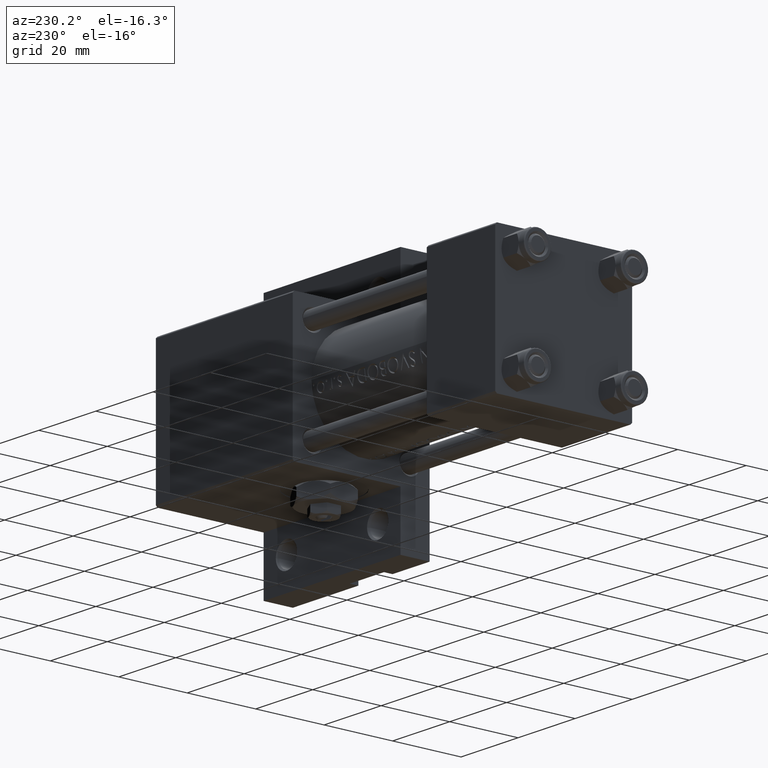
[diagram: clean part render]
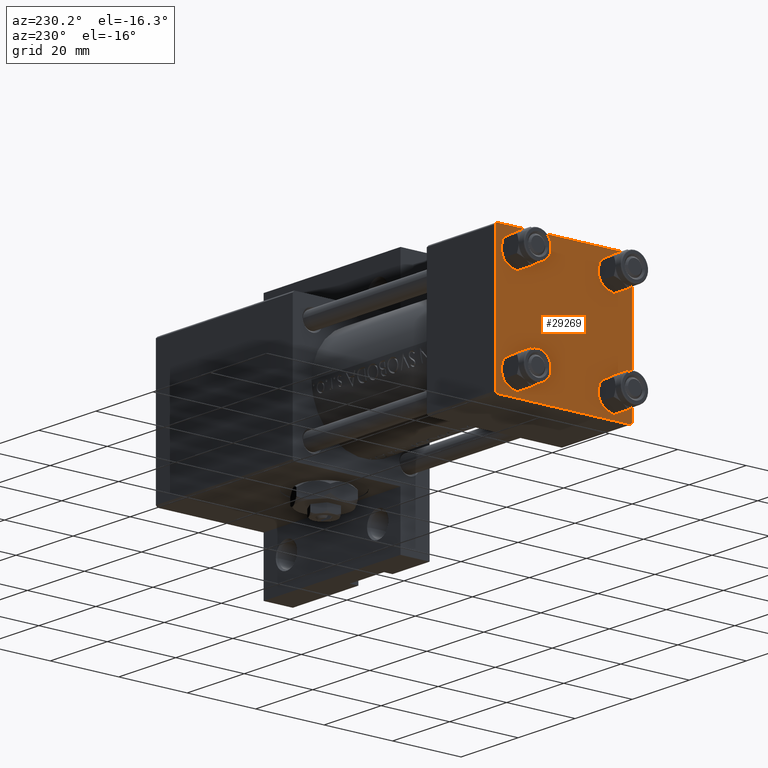
[diagram: same view with one face highlighted and labeled with its STEP entity id]
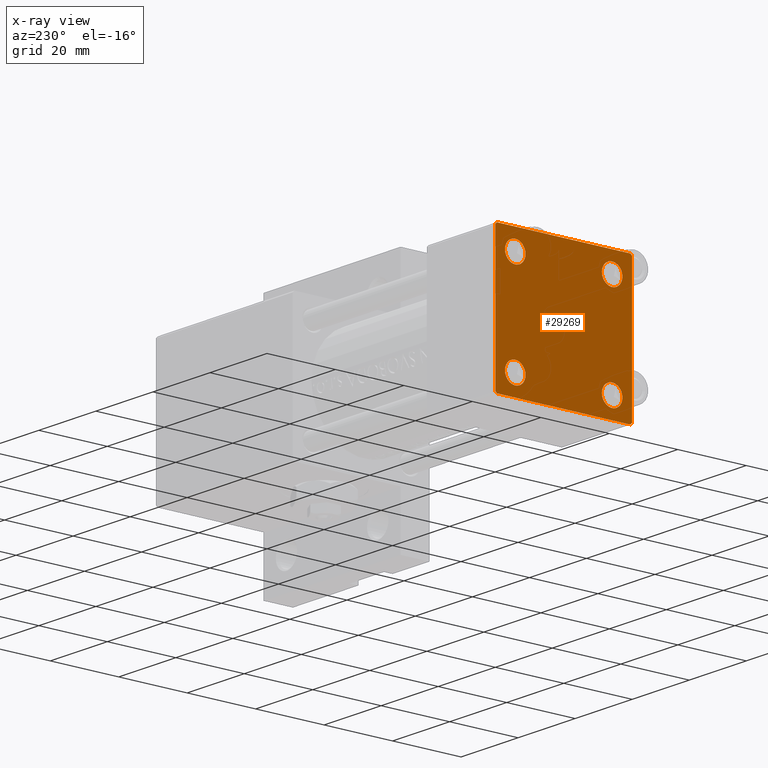
[diagram: x-ray of the same camera — body ghosted, the highlighted face saturated]
A machine part, auxiliary view. The second image highlights one B-rep face of the part: STEP entity #29269.
The next image is the same camera in x-ray: the body ghosted, the highlighted face saturated — about 0% of this face is hidden behind the body in this view.
In plain terms, the highlighted planar face has unit normal (-1, 0, -0).
Its self-contained STEP definition (entity closure, byte-faithful):
#764 = ORIENTED_EDGE ( 'NONE', *, *, #17695, .F. ) ;
#981 = VERTEX_POINT ( 'NONE', #31180 ) ;
#1001 = EDGE_LOOP ( 'NONE', ( #1838, #30888 ) ) ;
#1186 = CARTESIAN_POINT ( 'NONE',  ( 0.000000000000000000, -14.14999999999999503, -11.15000000000000036 ) ) ;
#1632 = ORIENTED_EDGE ( 'NONE', *, *, #39828, .T. ) ;
#1649 = AXIS2_PLACEMENT_3D ( 'NONE', #31211, #27218, #12268 ) ;
#1721 = VERTEX_POINT ( 'NONE', #31303 ) ;
#1838 = ORIENTED_EDGE ( 'NONE', *, *, #20908, .T. ) ;
#1909 = CARTESIAN_POINT ( 'NONE',  ( 0.000000000000000000, 20.00000000000000000, 20.00000000000000000 ) ) ;
#2832 = VECTOR ( 'NONE', #10138, 1000.000000000000000 ) ;
#3689 = CIRCLE ( 'NONE', #18815, 3.000000000000004441 ) ;
#3874 = VECTOR ( 'NONE', #24067, 1000.000000000000000 ) ;
#4197 = CARTESIAN_POINT ( 'NONE',  ( 0.000000000000000000, 20.00000000000000000, -20.00000000000000711 ) ) ;
#4822 = CARTESIAN_POINT ( 'NONE',  ( 0.000000000000000000, -14.14999999999999503, 17.14999999999998792 ) ) ;
#5444 = VERTEX_POINT ( 'NONE', #32926 ) ;
#5856 = DIRECTION ( 'NONE',  ( 0.000000000000000000, 0.000000000000000000, 1.000000000000000000 ) ) ;
#5898 = EDGE_CURVE ( 'NONE', #22561, #5444, #42839, .T. ) ;
#6454 = CIRCLE ( 'NONE', #41495, 2.999999999999983569 ) ;
#6455 = ORIENTED_EDGE ( 'NONE', *, *, #12789, .T. ) ;
#7560 = ORIENTED_EDGE ( 'NONE', *, *, #30659, .T. ) ;
#7562 = VERTEX_POINT ( 'NONE', #36111 ) ;
#7670 = VECTOR ( 'NONE', #29195, 1000.000000000000000 ) ;
#8075 = VERTEX_POINT ( 'NONE', #31450 ) ;
#8181 = ORIENTED_EDGE ( 'NONE', *, *, #5898, .T. ) ;
#8339 = VERTEX_POINT ( 'NONE', #9696 ) ;
#8433 = DIRECTION ( 'NONE',  ( 0.000000000000000000, 0.000000000000000000, 1.000000000000000000 ) ) ;
#8693 = DIRECTION ( 'NONE',  ( 1.000000000000000000, 0.000000000000000000, 0.000000000000000000 ) ) ;
#8875 = LINE ( 'NONE', #35537, #39595 ) ;
#9696 = CARTESIAN_POINT ( 'NONE',  ( 0.000000000000000000, 20.00000000000000000, 19.49999999999999289 ) ) ;
#10138 = DIRECTION ( 'NONE',  ( 0.000000000000000000, -1.000000000000000000, -2.602085213965210149E-16 ) ) ;
#10168 = CARTESIAN_POINT ( 'NONE',  ( 0.000000000000000000, -20.00000000000000000, -19.49999999999999645 ) ) ;
#11699 = AXIS2_PLACEMENT_3D ( 'NONE', #27203, #45912, #42180 ) ;
#11771 = FACE_BOUND ( 'NONE', #36227, .T. ) ;
#12268 = DIRECTION ( 'NONE',  ( 0.000000000000000000, 0.000000000000000000, 1.000000000000000000 ) ) ;
#12789 = EDGE_CURVE ( 'NONE', #26337, #26302, #45041, .T. ) ;
#13239 = ORIENTED_EDGE ( 'NONE', *, *, #14236, .T. ) ;
#13996 = LINE ( 'NONE', #37438, #7670 ) ;
#14236 = EDGE_CURVE ( 'NONE', #26302, #26337, #3689, .T. ) ;
#14353 = ORIENTED_EDGE ( 'NONE', *, *, #36535, .T. ) ;
#14800 = CARTESIAN_POINT ( 'NONE',  ( 0.000000000000000000, 14.14999999999999858, 14.15000000000000036 ) ) ;
#15027 = LINE ( 'NONE', #38681, #45397 ) ;
#15505 = VERTEX_POINT ( 'NONE', #28183 ) ;
#15621 = LINE ( 'NONE', #39049, #3874 ) ;
#16100 = EDGE_CURVE ( 'NONE', #45322, #8075, #43573, .T. ) ;
#16699 = DIRECTION ( 'NONE',  ( 1.000000000000000000, 0.000000000000000000, 0.000000000000000000 ) ) ;
#17626 = LINE ( 'NONE', #32805, #2832 ) ;
#17695 = EDGE_CURVE ( 'NONE', #41534, #43783, #13996, .T. ) ;
#18421 = AXIS2_PLACEMENT_3D ( 'NONE', #28619, #32611, #31210 ) ;
#18752 = VECTOR ( 'NONE', #48024, 1000.000000000000000 ) ;
#18815 = AXIS2_PLACEMENT_3D ( 'NONE', #28037, #43507, #5856 ) ;
#19882 = CARTESIAN_POINT ( 'NONE',  ( 0.000000000000000000, -14.14999999999999503, -17.15000000000000924 ) ) ;
#19976 = FACE_OUTER_BOUND ( 'NONE', #40896, .T. ) ;
#20908 = EDGE_CURVE ( 'NONE', #27148, #42430, #41235, .T. ) ;
#21755 = CARTESIAN_POINT ( 'NONE',  ( -0.000000000000000000, 19.75000000000013500, 19.74999999999986144 ) ) ;
#22387 = CIRCLE ( 'NONE', #18421, 2.999999999999983569 ) ;
#22511 = DIRECTION ( 'NONE',  ( 0.000000000000000000, 0.000000000000000000, 1.000000000000000000 ) ) ;
#22561 = VERTEX_POINT ( 'NONE', #46315 ) ;
#22798 = CARTESIAN_POINT ( 'NONE',  ( 0.000000000000000000, 14.14999999999999858, 11.15000000000001990 ) ) ;
#24067 = DIRECTION ( 'NONE',  ( -0.000000000000000000, -0.7071067811865524577, -0.7071067811865426878 ) ) ;
#25004 = DIRECTION ( 'NONE',  ( 0.000000000000000000, 0.7071067811865425767, -0.7071067811865525687 ) ) ;
#25144 = DIRECTION ( 'NONE',  ( 0.000000000000000000, 0.000000000000000000, 1.000000000000000000 ) ) ;
#25774 = CARTESIAN_POINT ( 'NONE',  ( 0.000000000000000000, 20.00000000000000000, -19.50000000000002132 ) ) ;
#26302 = VERTEX_POINT ( 'NONE', #19882 ) ;
#26337 = VERTEX_POINT ( 'NONE', #1186 ) ;
#26408 = EDGE_CURVE ( 'NONE', #8339, #30839, #47781, .T. ) ;
#26453 = EDGE_CURVE ( 'NONE', #981, #1721, #17626, .T. ) ;
#26872 = DIRECTION ( 'NONE',  ( 0.000000000000000000, -1.000000000000000000, 1.734723475976807094E-16 ) ) ;
#27148 = VERTEX_POINT ( 'NONE', #4822 ) ;
#27203 = CARTESIAN_POINT ( 'NONE',  ( 0.000000000000000000, 0.000000000000000000, 0.000000000000000000 ) ) ;
#27218 = DIRECTION ( 'NONE',  ( 1.000000000000000000, 0.000000000000000000, 0.000000000000000000 ) ) ;
#27771 = CARTESIAN_POINT ( 'NONE',  ( 0.000000000000000000, 14.14999999999999858, 14.15000000000000036 ) ) ;
#27850 = CARTESIAN_POINT ( 'NONE',  ( 0.000000000000000000, -14.14999999999999503, 14.15000000000000391 ) ) ;
#27930 = FACE_BOUND ( 'NONE', #44958, .T. ) ;
#28037 = CARTESIAN_POINT ( 'NONE',  ( 0.000000000000000000, -14.14999999999999503, -14.15000000000000391 ) ) ;
#28183 = CARTESIAN_POINT ( 'NONE',  ( 0.000000000000000000, 14.14999999999999858, -11.15000000000001812 ) ) ;
#28619 = CARTESIAN_POINT ( 'NONE',  ( 0.000000000000000000, 14.14999999999999858, -14.15000000000000036 ) ) ;
#28794 = ORIENTED_EDGE ( 'NONE', *, *, #32389, .T. ) ;
#29195 = DIRECTION ( 'NONE',  ( 0.000000000000000000, 8.673617379884036705E-17, -1.000000000000000000 ) ) ;
#29269 = ADVANCED_FACE ( 'NONE', ( #38933, #34936, #11771, #27930, #19976 ), #31195, .T. ) ;
#29320 = ORIENTED_EDGE ( 'NONE', *, *, #47216, .T. ) ;
#30659 = EDGE_CURVE ( 'NONE', #5444, #43783, #8875, .T. ) ;
#30839 = VERTEX_POINT ( 'NONE', #25774 ) ;
#30888 = ORIENTED_EDGE ( 'NONE', *, *, #41993, .T. ) ;
#30894 = EDGE_LOOP ( 'NONE', ( #6455, #13239 ) ) ;
#31180 = CARTESIAN_POINT ( 'NONE',  ( 0.000000000000000000, 19.50000000000000000, 20.00000000000000000 ) ) ;
#31195 = PLANE ( 'NONE',  #11699 ) ;
#31206 = ORIENTED_EDGE ( 'NONE', *, *, #26453, .F. ) ;
#31210 = DIRECTION ( 'NONE',  ( 0.000000000000000000, 0.000000000000000000, 1.000000000000000000 ) ) ;
#31211 = CARTESIAN_POINT ( 'NONE',  ( 0.000000000000000000, -14.14999999999999503, 14.15000000000000391 ) ) ;
#31303 = CARTESIAN_POINT ( 'NONE',  ( 0.000000000000000000, -19.49999999999999289, 19.99999999999998934 ) ) ;
#31450 = CARTESIAN_POINT ( 'NONE',  ( 0.000000000000000000, 14.14999999999999858, 17.14999999999998437 ) ) ;
#31659 = CARTESIAN_POINT ( 'NONE',  ( 0.000000000000000000, -14.14999999999999503, -14.15000000000000391 ) ) ;
#32389 = EDGE_CURVE ( 'NONE', #981, #8339, #33230, .T. ) ;
#32611 = DIRECTION ( 'NONE',  ( 1.000000000000000000, 0.000000000000000000, 0.000000000000000000 ) ) ;
#32805 = CARTESIAN_POINT ( 'NONE',  ( 0.000000000000000000, 20.00000000000000000, 20.00000000000000000 ) ) ;
#32926 = CARTESIAN_POINT ( 'NONE',  ( 0.000000000000000000, -19.50000000000000711, -20.00000000000000000 ) ) ;
#33087 = AXIS2_PLACEMENT_3D ( 'NONE', #31659, #16699, #25144 ) ;
#33230 = LINE ( 'NONE', #21755, #43538 ) ;
#33234 = AXIS2_PLACEMENT_3D ( 'NONE', #27850, #42590, #8433 ) ;
#34936 = FACE_BOUND ( 'NONE', #30894, .T. ) ;
#35111 = DIRECTION ( 'NONE',  ( 0.000000000000000000, 0.000000000000000000, 1.000000000000000000 ) ) ;
#35295 = DIRECTION ( 'NONE',  ( 0.000000000000000000, -0.7071067811865401342, 0.7071067811865549002 ) ) ;
#35537 = CARTESIAN_POINT ( 'NONE',  ( 0.000000000000000000, -19.75000000000020961, -19.74999999999979394 ) ) ;
#35791 = ORIENTED_EDGE ( 'NONE', *, *, #36808, .T. ) ;
#36111 = CARTESIAN_POINT ( 'NONE',  ( 0.000000000000000000, 14.14999999999999858, -17.14999999999998437 ) ) ;
#36227 = EDGE_LOOP ( 'NONE', ( #29320, #14353 ) ) ;
#36535 = EDGE_CURVE ( 'NONE', #7562, #15505, #40484, .T. ) ;
#36808 = EDGE_CURVE ( 'NONE', #30839, #22561, #15621, .T. ) ;
#36979 = ORIENTED_EDGE ( 'NONE', *, *, #26408, .T. ) ;
#37438 = CARTESIAN_POINT ( 'NONE',  ( 0.000000000000000000, -20.00000000000000355, 19.99999999999998934 ) ) ;
#38681 = CARTESIAN_POINT ( 'NONE',  ( -0.000000000000000000, -19.74999999999992539, 19.75000000000006395 ) ) ;
#38933 = FACE_BOUND ( 'NONE', #1001, .T. ) ;
#39049 = CARTESIAN_POINT ( 'NONE',  ( -0.000000000000000000, 19.74999999999986855, -19.75000000000014211 ) ) ;
#39054 = ORIENTED_EDGE ( 'NONE', *, *, #16100, .T. ) ;
#39259 = DIRECTION ( 'NONE',  ( 0.000000000000000000, 0.000000000000000000, 1.000000000000000000 ) ) ;
#39312 = CARTESIAN_POINT ( 'NONE',  ( 0.000000000000000000, -20.00000000000000355, 19.49999999999998224 ) ) ;
#39595 = VECTOR ( 'NONE', #35295, 1000.000000000000000 ) ;
#39828 = EDGE_CURVE ( 'NONE', #41534, #1721, #15027, .T. ) ;
#40484 = CIRCLE ( 'NONE', #43683, 2.999999999999983569 ) ;
#40841 = VECTOR ( 'NONE', #26872, 1000.000000000000000 ) ;
#40896 = EDGE_LOOP ( 'NONE', ( #36979, #35791, #8181, #7560, #764, #1632, #31206, #28794 ) ) ;
#41235 = CIRCLE ( 'NONE', #33234, 2.999999999999983569 ) ;
#41495 = AXIS2_PLACEMENT_3D ( 'NONE', #14800, #49196, #22511 ) ;
#41534 = VERTEX_POINT ( 'NONE', #39312 ) ;
#41934 = DIRECTION ( 'NONE',  ( -0.000000000000000000, 0.7071067811865500152, 0.7071067811865451302 ) ) ;
#41993 = EDGE_CURVE ( 'NONE', #42430, #27148, #43089, .T. ) ;
#42017 = DIRECTION ( 'NONE',  ( 1.000000000000000000, 0.000000000000000000, 0.000000000000000000 ) ) ;
#42180 = DIRECTION ( 'NONE',  ( -0.000000000000000000, 0.000000000000000000, 1.000000000000000000 ) ) ;
#42430 = VERTEX_POINT ( 'NONE', #47709 ) ;
#42535 = EDGE_CURVE ( 'NONE', #8075, #45322, #6454, .T. ) ;
#42590 = DIRECTION ( 'NONE',  ( 1.000000000000000000, 0.000000000000000000, 0.000000000000000000 ) ) ;
#42839 = LINE ( 'NONE', #4197, #40841 ) ;
#43089 = CIRCLE ( 'NONE', #1649, 2.999999999999983569 ) ;
#43507 = DIRECTION ( 'NONE',  ( 1.000000000000000000, 0.000000000000000000, 0.000000000000000000 ) ) ;
#43538 = VECTOR ( 'NONE', #25004, 999.9999999999998863 ) ;
#43573 = CIRCLE ( 'NONE', #46739, 2.999999999999983569 ) ;
#43683 = AXIS2_PLACEMENT_3D ( 'NONE', #46336, #8693, #35111 ) ;
#43783 = VERTEX_POINT ( 'NONE', #10168 ) ;
#44958 = EDGE_LOOP ( 'NONE', ( #47565, #39054 ) ) ;
#45041 = CIRCLE ( 'NONE', #33087, 3.000000000000004441 ) ;
#45322 = VERTEX_POINT ( 'NONE', #22798 ) ;
#45397 = VECTOR ( 'NONE', #41934, 1000.000000000000114 ) ;
#45912 = DIRECTION ( 'NONE',  ( -1.000000000000000000, 0.000000000000000000, -0.000000000000000000 ) ) ;
#46315 = CARTESIAN_POINT ( 'NONE',  ( 0.000000000000000000, 19.50000000000000711, -20.00000000000000711 ) ) ;
#46336 = CARTESIAN_POINT ( 'NONE',  ( 0.000000000000000000, 14.14999999999999858, -14.15000000000000036 ) ) ;
#46739 = AXIS2_PLACEMENT_3D ( 'NONE', #27771, #42017, #39259 ) ;
#47216 = EDGE_CURVE ( 'NONE', #15505, #7562, #22387, .T. ) ;
#47565 = ORIENTED_EDGE ( 'NONE', *, *, #42535, .T. ) ;
#47709 = CARTESIAN_POINT ( 'NONE',  ( 0.000000000000000000, -14.14999999999999503, 11.15000000000002345 ) ) ;
#47781 = LINE ( 'NONE', #1909, #18752 ) ;
#48024 = DIRECTION ( 'NONE',  ( 0.000000000000000000, 0.000000000000000000, -1.000000000000000000 ) ) ;
#49196 = DIRECTION ( 'NONE',  ( 1.000000000000000000, 0.000000000000000000, 0.000000000000000000 ) ) ;